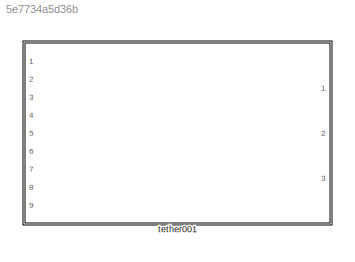
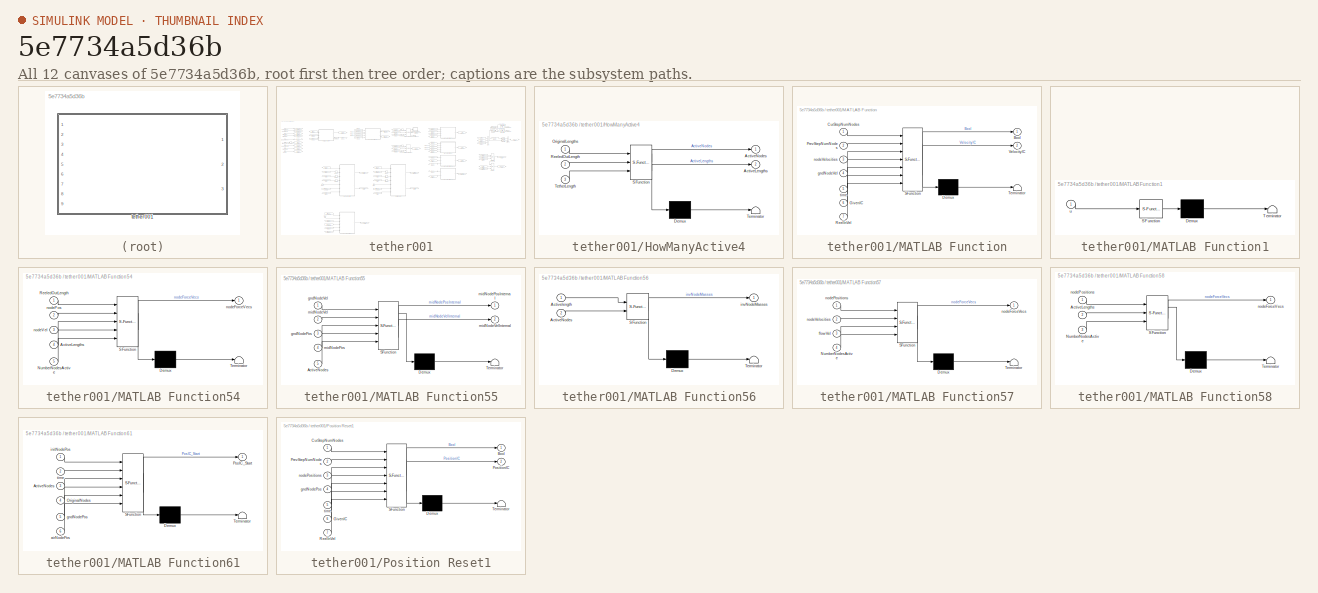
[diagram: thumbnail index - all 12 canvases of the model, root first then tree order]
MODEL slx_5e7734a5d36b
KIND library
CONFIG AbsTol = auto
CONFIG EnableMultiTasking = off
CONFIG FixedStep = auto
CONFIG MaxStep = auto
CONFIG MinStep = auto
CONFIG RelTol = 1e-3
CONFIG SampleTimeConstraint = Unconstrained
CONFIG SolverName = VariableStepAuto
CONFIG StartTime = 0.0
CONFIG StopTime = 10.0
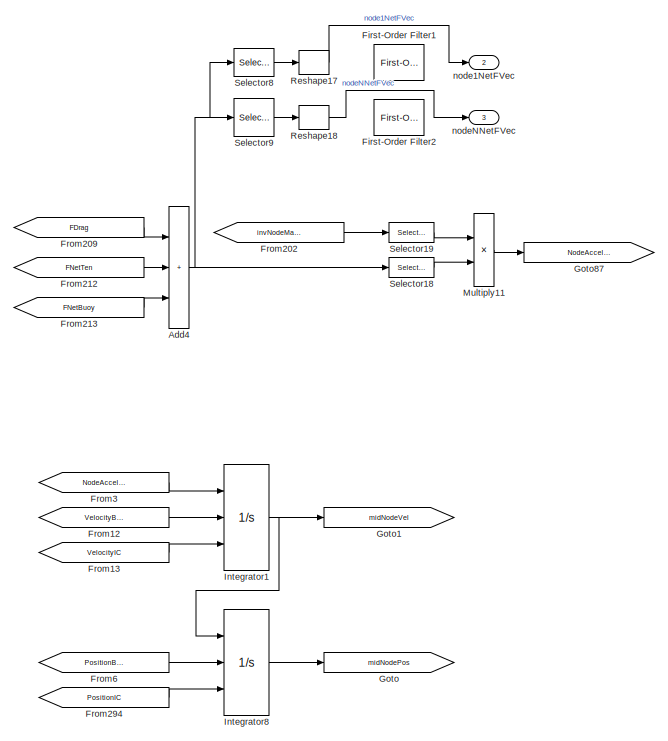
[diagram: tether001 - part 1/6, top right region]
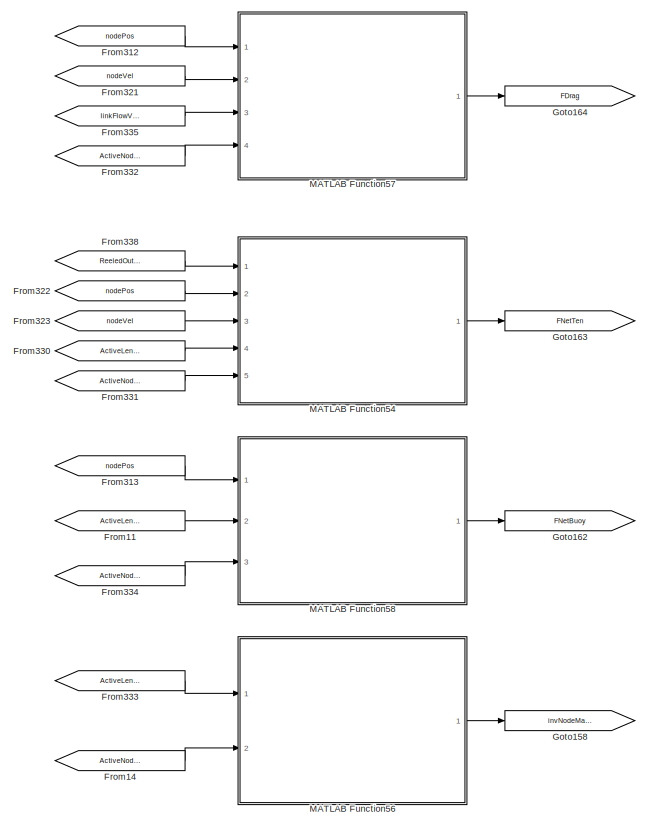
[diagram: tether001 - part 2/6, top right region]
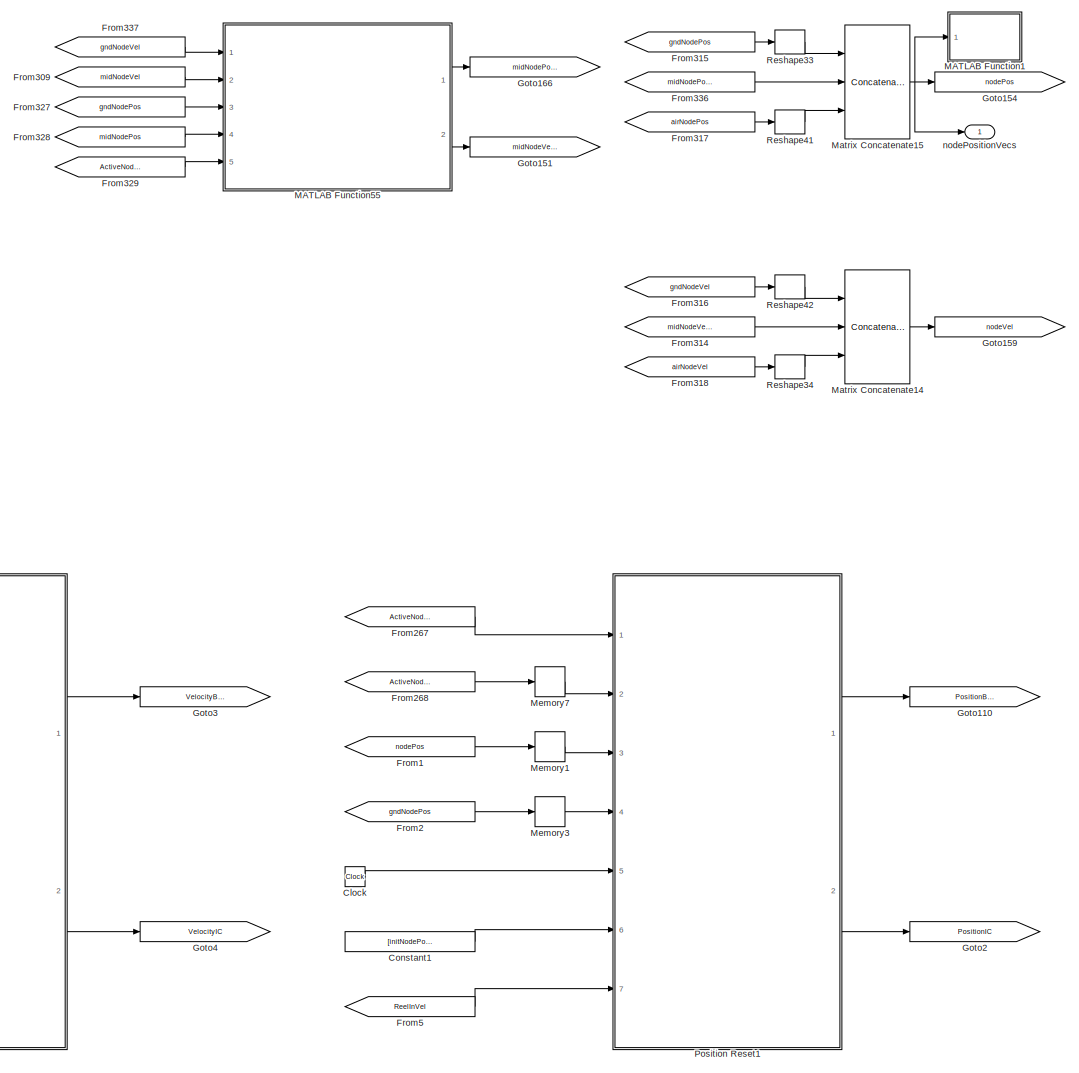
[diagram: tether001 - part 3/6, central region]
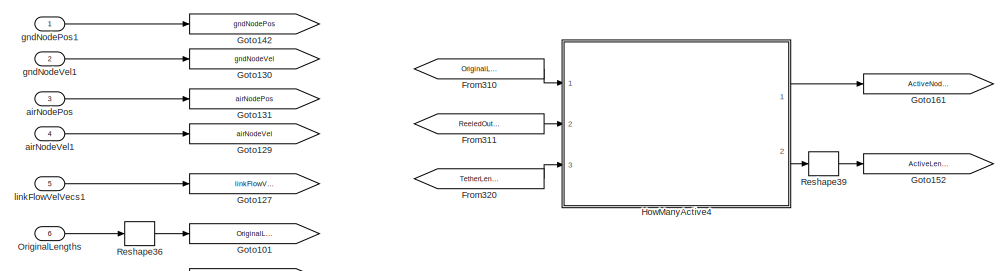
[diagram: tether001 - part 4/6, top left region]
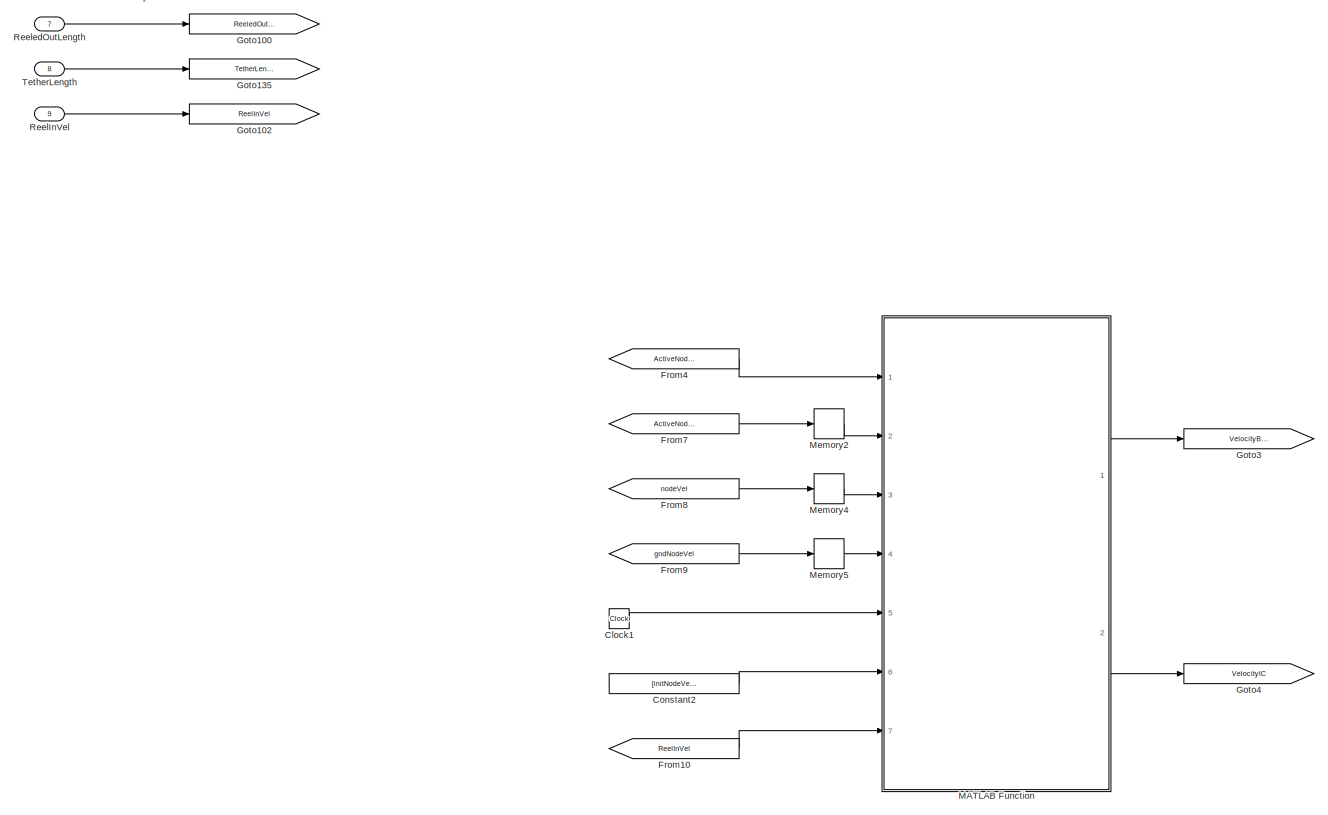
[diagram: tether001 - part 5/6, middle left region]
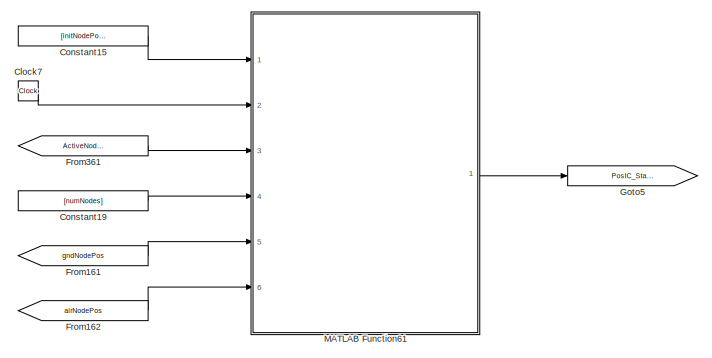
[diagram: tether001 - part 6/6, bottom left region]
BLOCK [SubSystem] tether001
  Ports = [9, 3]
  RequestExecContextInheritance = off
BLOCK [Sum] tether001/Add4
  IconShape = rectangular
  Inputs = 3
  Ports = [3, 1]
BLOCK [Clock] tether001/Clock
BLOCK [Clock] tether001/Clock1
BLOCK [Clock] tether001/Clock7
  Commented = on
BLOCK [Constant] tether001/Constant1
  Value = [initNodePos]
BLOCK [Constant] tether001/Constant15
  Commented = on
  Value = [initNodePos]
BLOCK [Constant] tether001/Constant19
  Commented = on
  Value = [numNodes]
BLOCK [Constant] tether001/Constant2
  Value = [initNodeVel]
BLOCK [Reference] tether001/First-Order Filter1  REF=spsFirstOrderFilterLib/First-Order
Filter
  Commented = on
  Ports = [1, 1]
  SourceBlock = spsFirstOrderFilterLib/First-Order\nFilter
  SourceProductBaseCode = PS
  SourceType = First-Order Filter
BLOCK [Reference] tether001/First-Order Filter2  REF=spsFirstOrderFilterLib/First-Order
Filter
  Commented = on
  Ports = [1, 1]
  SourceBlock = spsFirstOrderFilterLib/First-Order\nFilter
  SourceProductBaseCode = PS
  SourceType = First-Order Filter
BLOCK [From] tether001/From1
  GotoTag = nodePos
BLOCK [From] tether001/From10
  GotoTag = ReelInVel
BLOCK [From] tether001/From11
  GotoTag = ActiveLengths
BLOCK [From] tether001/From12
  GotoTag = VelocityBoolean
BLOCK [From] tether001/From13
  GotoTag = VelocityIC
BLOCK [From] tether001/From14
  GotoTag = ActiveNodes
BLOCK [From] tether001/From161
  Commented = on
  GotoTag = gndNodePos
BLOCK [From] tether001/From162
  Commented = on
  GotoTag = airNodePos
  NameLocation = top
BLOCK [From] tether001/From2
  GotoTag = gndNodePos
BLOCK [From] tether001/From202
  GotoTag = invNodeMasses
BLOCK [From] tether001/From209
  GotoTag = FDrag
BLOCK [From] tether001/From212
  GotoTag = FNetTen
BLOCK [From] tether001/From213
  GotoTag = FNetBuoy
BLOCK [From] tether001/From267
  GotoTag = ActiveNodes
BLOCK [From] tether001/From268
  GotoTag = ActiveNodes
BLOCK [From] tether001/From294
  GotoTag = PositionIC
BLOCK [From] tether001/From3
  GotoTag = NodeAccelerations
BLOCK [From] tether001/From309
  GotoTag = midNodeVel
BLOCK [From] tether001/From310
  GotoTag = OriginalLengths
BLOCK [From] tether001/From311
  GotoTag = ReeledOutLength
BLOCK [From] tether001/From312
  GotoTag = nodePos
BLOCK [From] tether001/From313
  GotoTag = nodePos
BLOCK [From] tether001/From314
  GotoTag = midNodeVelInternal
BLOCK [From] tether001/From315
  GotoTag = gndNodePos
BLOCK [From] tether001/From316
  GotoTag = gndNodeVel
BLOCK [From] tether001/From317
  GotoTag = airNodePos
BLOCK [From] tether001/From318
  GotoTag = airNodeVel
BLOCK [From] tether001/From320
  GotoTag = TetherLength
BLOCK [From] tether001/From321
  GotoTag = nodeVel
BLOCK [From] tether001/From322
  GotoTag = nodePos
BLOCK [From] tether001/From323
  GotoTag = nodeVel
BLOCK [From] tether001/From327
  GotoTag = gndNodePos
BLOCK [From] tether001/From328
  GotoTag = midNodePos
BLOCK [From] tether001/From329
  GotoTag = ActiveNodes
BLOCK [From] tether001/From330
  GotoTag = ActiveLengths
BLOCK [From] tether001/From331
  GotoTag = ActiveNodes
BLOCK [From] tether001/From332
  GotoTag = ActiveNodes
BLOCK [From] tether001/From333
  GotoTag = ActiveLengths
BLOCK [From] tether001/From334
  GotoTag = ActiveNodes
BLOCK [From] tether001/From335
  GotoTag = linkFlowVelVecs
BLOCK [From] tether001/From336
  GotoTag = midNodePosInternal
BLOCK [From] tether001/From337
  GotoTag = gndNodeVel
BLOCK [From] tether001/From338
  GotoTag = ReeledOutLength
BLOCK [From] tether001/From361
  Commented = on
  GotoTag = ActiveNodes
BLOCK [From] tether001/From4
  GotoTag = ActiveNodes
BLOCK [From] tether001/From5
  GotoTag = ReelInVel
BLOCK [From] tether001/From6
  GotoTag = PositionBoolean
BLOCK [From] tether001/From7
  GotoTag = ActiveNodes
BLOCK [From] tether001/From8
  GotoTag = nodeVel
BLOCK [From] tether001/From9
  GotoTag = gndNodeVel
BLOCK [Goto] tether001/Goto
  GotoTag = midNodePos
BLOCK [Goto] tether001/Goto1
  GotoTag = midNodeVel
BLOCK [Goto] tether001/Goto100
  GotoTag = ReeledOutLength
BLOCK [Goto] tether001/Goto101
  GotoTag = OriginalLengths
BLOCK [Goto] tether001/Goto102
  GotoTag = ReelInVel
BLOCK [Goto] tether001/Goto110
  GotoTag = PositionBoolean
BLOCK [Goto] tether001/Goto127
  GotoTag = linkFlowVelVecs
BLOCK [Goto] tether001/Goto129
  GotoTag = airNodeVel
BLOCK [Goto] tether001/Goto130
  GotoTag = gndNodeVel
BLOCK [Goto] tether001/Goto131
  GotoTag = airNodePos
BLOCK [Goto] tether001/Goto135
  GotoTag = TetherLength
BLOCK [Goto] tether001/Goto142
  GotoTag = gndNodePos
BLOCK [Goto] tether001/Goto151
  GotoTag = midNodeVelInternal
BLOCK [Goto] tether001/Goto152
  GotoTag = ActiveLengths
BLOCK [Goto] tether001/Goto154
  GotoTag = nodePos
BLOCK [Goto] tether001/Goto158
  GotoTag = invNodeMasses
BLOCK [Goto] tether001/Goto159
  GotoTag = nodeVel
BLOCK [Goto] tether001/Goto161
  GotoTag = ActiveNodes
BLOCK [Goto] tether001/Goto162
  GotoTag = FNetBuoy
BLOCK [Goto] tether001/Goto163
  GotoTag = FNetTen
BLOCK [Goto] tether001/Goto164
  GotoTag = FDrag
BLOCK [Goto] tether001/Goto166
  GotoTag = midNodePosInternal
BLOCK [Goto] tether001/Goto2
  GotoTag = PositionIC
BLOCK [Goto] tether001/Goto3
  GotoTag = VelocityBoolean
BLOCK [Goto] tether001/Goto4
  GotoTag = VelocityIC
BLOCK [Goto] tether001/Goto5
  Commented = on
  GotoTag = PosIC_Start
BLOCK [Goto] tether001/Goto87
  GotoTag = NodeAccelerations
BLOCK [SubSystem] tether001/HowManyActive4
  ErrorFcn = Stateflow.Translate.translate
  PermitHierarchicalResolution = ExplicitOnly
  Ports = [3, 2]
  RequestExecContextInheritance = off
  SFBlockType = MATLAB Function
  TreatAsAtomicUnit = on
BLOCK [Demux] tether001/HowManyActive4/ Demux 
  Outputs = 1
  Ports = [1, 1]
BLOCK [S-Function] tether001/HowManyActive4/ SFunction 
  EnableBusSupport = off
  FunctionName = sf_sfun
  PortCounts = [3 3]
  Ports = [3, 3]
  SFcnIsStateOwnerBlock = off
  SFunctionDeploymentMode = off
  Tag = Stateflow S-Function 1
BLOCK [Terminator] tether001/HowManyActive4/ Terminator 
BLOCK [Outport] tether001/HowManyActive4/ActiveLengths
  Port = 2
BLOCK [Outport] tether001/HowManyActive4/ActiveNodes
BLOCK [Inport] tether001/HowManyActive4/OriginalLengths
BLOCK [Inport] tether001/HowManyActive4/ReeledOutLength
  Port = 2
BLOCK [Inport] tether001/HowManyActive4/TetherLength
  Port = 3
BLOCK [Integrator] tether001/Integrator1
  ExternalReset = rising
  InitialConditionSource = external
  Ports = [3, 1]
BLOCK [Integrator] tether001/Integrator8
  ExternalReset = rising
  InitialConditionSource = external
  Ports = [3, 1]
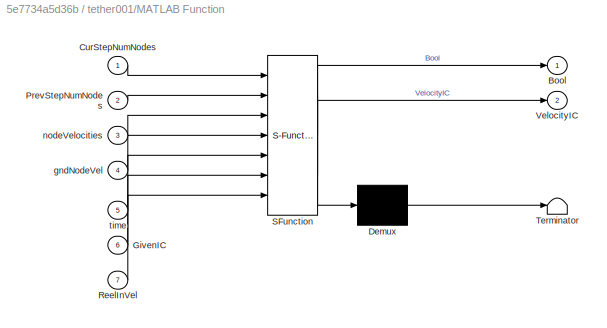
BLOCK [SubSystem] tether001/MATLAB Function
  ErrorFcn = Stateflow.Translate.translate
  PermitHierarchicalResolution = ExplicitOnly
  Ports = [7, 2]
  RequestExecContextInheritance = off
  SFBlockType = MATLAB Function
  TreatAsAtomicUnit = on
BLOCK [Demux] tether001/MATLAB Function/ Demux 
  Outputs = 1
  Ports = [1, 1]
BLOCK [S-Function] tether001/MATLAB Function/ SFunction 
  EnableBusSupport = off
  FunctionName = sf_sfun
  PortCounts = [7 3]
  Ports = [7, 3]
  SFcnIsStateOwnerBlock = off
  SFunctionDeploymentMode = off
  Tag = Stateflow S-Function 2
BLOCK [Terminator] tether001/MATLAB Function/ Terminator 
BLOCK [Outport] tether001/MATLAB Function/Bool
BLOCK [Inport] tether001/MATLAB Function/CurStepNumNodes
BLOCK [Inport] tether001/MATLAB Function/GivenIC
  Port = 6
BLOCK [Inport] tether001/MATLAB Function/PrevStepNumNodes
  Port = 2
BLOCK [Inport] tether001/MATLAB Function/ReelInVel
  Port = 7
BLOCK [Outport] tether001/MATLAB Function/VelocityIC
  Port = 2
BLOCK [Inport] tether001/MATLAB Function/gndNodeVel
  Port = 4
BLOCK [Inport] tether001/MATLAB Function/nodeVelocities
  Port = 3
BLOCK [Inport] tether001/MATLAB Function/time
  Port = 5
BLOCK [SubSystem] tether001/MATLAB Function1
  ErrorFcn = Stateflow.Translate.translate
  PermitHierarchicalResolution = ExplicitOnly
  Ports = [1]
  RequestExecContextInheritance = off
  SFBlockType = MATLAB Function
  TreatAsAtomicUnit = on
BLOCK [Demux] tether001/MATLAB Function1/ Demux 
  Outputs = 1
  Ports = [1, 1]
BLOCK [S-Function] tether001/MATLAB Function1/ SFunction 
  EnableBusSupport = off
  FunctionName = sf_sfun
  PortCounts = [1 1]
  Ports = [1, 1]
  SFcnIsStateOwnerBlock = off
  SFunctionDeploymentMode = off
  Tag = Stateflow S-Function 3
BLOCK [Terminator] tether001/MATLAB Function1/ Terminator 
BLOCK [Inport] tether001/MATLAB Function1/u
BLOCK [SubSystem] tether001/MATLAB Function54
  ErrorFcn = Stateflow.Translate.translate
  PermitHierarchicalResolution = ExplicitOnly
  Ports = [5, 1]
  RequestExecContextInheritance = off
  SFBlockType = MATLAB Function
  TreatAsAtomicUnit = on
BLOCK [Demux] tether001/MATLAB Function54/ Demux 
  Outputs = 1
  Ports = [1, 1]
BLOCK [S-Function] tether001/MATLAB Function54/ SFunction 
  EnableBusSupport = off
  FunctionName = sf_sfun
  PortCounts = [5 2]
  Ports = [5, 2]
  SFcnIsStateOwnerBlock = off
  SFunctionDeploymentMode = off
  Tag = Stateflow S-Function 4
BLOCK [Terminator] tether001/MATLAB Function54/ Terminator 
BLOCK [Inport] tether001/MATLAB Function54/ActiveLengths
  Port = 4
BLOCK [Inport] tether001/MATLAB Function54/NumberNodesActive
  Port = 5
BLOCK [Inport] tether001/MATLAB Function54/ReeledOutLength
BLOCK [Outport] tether001/MATLAB Function54/nodeForceVecs
BLOCK [Inport] tether001/MATLAB Function54/nodePos
  Port = 2
BLOCK [Inport] tether001/MATLAB Function54/nodeVel
  Port = 3
BLOCK [SubSystem] tether001/MATLAB Function55
  ErrorFcn = Stateflow.Translate.translate
  PermitHierarchicalResolution = ExplicitOnly
  Ports = [5, 2]
  RequestExecContextInheritance = off
  SFBlockType = MATLAB Function
  TreatAsAtomicUnit = on
BLOCK [Demux] tether001/MATLAB Function55/ Demux 
  Outputs = 1
  Ports = [1, 1]
BLOCK [S-Function] tether001/MATLAB Function55/ SFunction 
  EnableBusSupport = off
  FunctionName = sf_sfun
  PortCounts = [5 3]
  Ports = [5, 3]
  SFcnIsStateOwnerBlock = off
  SFunctionDeploymentMode = off
  Tag = Stateflow S-Function 5
BLOCK [Terminator] tether001/MATLAB Function55/ Terminator 
BLOCK [Inport] tether001/MATLAB Function55/ActiveNodes
  Port = 5
BLOCK [Inport] tether001/MATLAB Function55/gndNodePos
  Port = 3
BLOCK [Inport] tether001/MATLAB Function55/gndNodeVel
BLOCK [Inport] tether001/MATLAB Function55/midNodePos
  Port = 4
BLOCK [Outport] tether001/MATLAB Function55/midNodePosInternal
BLOCK [Inport] tether001/MATLAB Function55/midNodeVel
  Port = 2
BLOCK [Outport] tether001/MATLAB Function55/midNodeVelInternal
  Port = 2
BLOCK [SubSystem] tether001/MATLAB Function56
  ErrorFcn = Stateflow.Translate.translate
  PermitHierarchicalResolution = ExplicitOnly
  Ports = [2, 1]
  RequestExecContextInheritance = off
  SFBlockType = MATLAB Function
  TreatAsAtomicUnit = on
BLOCK [Demux] tether001/MATLAB Function56/ Demux 
  Outputs = 1
  Ports = [1, 1]
BLOCK [S-Function] tether001/MATLAB Function56/ SFunction 
  EnableBusSupport = off
  FunctionName = sf_sfun
  PortCounts = [2 2]
  Ports = [2, 2]
  SFcnIsStateOwnerBlock = off
  SFunctionDeploymentMode = off
  Tag = Stateflow S-Function 6
BLOCK [Terminator] tether001/MATLAB Function56/ Terminator 
BLOCK [Inport] tether001/MATLAB Function56/ActiveNodes
  Port = 2
BLOCK [Inport] tether001/MATLAB Function56/Activelength
BLOCK [Outport] tether001/MATLAB Function56/invNodeMasses
BLOCK [SubSystem] tether001/MATLAB Function57
  ErrorFcn = Stateflow.Translate.translate
  PermitHierarchicalResolution = ExplicitOnly
  Ports = [4, 1]
  RequestExecContextInheritance = off
  SFBlockType = MATLAB Function
  TreatAsAtomicUnit = on
BLOCK [Demux] tether001/MATLAB Function57/ Demux 
  Outputs = 1
  Ports = [1, 1]
BLOCK [S-Function] tether001/MATLAB Function57/ SFunction 
  EnableBusSupport = off
  FunctionName = sf_sfun
  PortCounts = [4 2]
  Ports = [4, 2]
  SFcnIsStateOwnerBlock = off
  SFunctionDeploymentMode = off
  Tag = Stateflow S-Function 7
BLOCK [Terminator] tether001/MATLAB Function57/ Terminator 
BLOCK [Inport] tether001/MATLAB Function57/NumberNodesActive
  Port = 4
BLOCK [Inport] tether001/MATLAB Function57/flowVel
  Port = 3
BLOCK [Outport] tether001/MATLAB Function57/nodeForceVecs
BLOCK [Inport] tether001/MATLAB Function57/nodePositions
BLOCK [Inport] tether001/MATLAB Function57/nodeVelocities
  Port = 2
BLOCK [SubSystem] tether001/MATLAB Function58
  ErrorFcn = Stateflow.Translate.translate
  PermitHierarchicalResolution = ExplicitOnly
  Ports = [3, 1]
  RequestExecContextInheritance = off
  SFBlockType = MATLAB Function
  TreatAsAtomicUnit = on
BLOCK [Demux] tether001/MATLAB Function58/ Demux 
  Outputs = 1
  Ports = [1, 1]
BLOCK [S-Function] tether001/MATLAB Function58/ SFunction 
  EnableBusSupport = off
  FunctionName = sf_sfun
  PortCounts = [3 2]
  Ports = [3, 2]
  SFcnIsStateOwnerBlock = off
  SFunctionDeploymentMode = off
  Tag = Stateflow S-Function 8
BLOCK [Terminator] tether001/MATLAB Function58/ Terminator 
BLOCK [Inport] tether001/MATLAB Function58/ActiveLengths
  Port = 2
BLOCK [Inport] tether001/MATLAB Function58/NumberNodesActive
  Port = 3
BLOCK [Outport] tether001/MATLAB Function58/nodeForceVecs
BLOCK [Inport] tether001/MATLAB Function58/nodePositions
BLOCK [SubSystem] tether001/MATLAB Function61
  Commented = on
  ErrorFcn = Stateflow.Translate.translate
  PermitHierarchicalResolution = ExplicitOnly
  Ports = [6, 1]
  RequestExecContextInheritance = off
  SFBlockType = MATLAB Function
  TreatAsAtomicUnit = on
BLOCK [Demux] tether001/MATLAB Function61/ Demux 
  Outputs = 1
  Ports = [1, 1]
BLOCK [S-Function] tether001/MATLAB Function61/ SFunction 
  EnableBusSupport = off
  FunctionName = sf_sfun
  PortCounts = [6 2]
  Ports = [6, 2]
  SFcnIsStateOwnerBlock = off
  SFunctionDeploymentMode = off
  Tag = Stateflow S-Function 9
BLOCK [Terminator] tether001/MATLAB Function61/ Terminator 
BLOCK [Inport] tether001/MATLAB Function61/ActiveNodes
  Port = 3
BLOCK [Inport] tether001/MATLAB Function61/OriginalNodes
  Port = 4
BLOCK [Outport] tether001/MATLAB Function61/PosIC_Start
BLOCK [Inport] tether001/MATLAB Function61/airNodePos
  Port = 6
BLOCK [Inport] tether001/MATLAB Function61/gndNodePos
  Port = 5
BLOCK [Inport] tether001/MATLAB Function61/initNodePos
BLOCK [Inport] tether001/MATLAB Function61/time
  Port = 2
BLOCK [Concatenate] tether001/Matrix Concatenate14
  ConcatenateDimension = 2
  Mode = Multidimensional array
  NumInputs = 3
  Ports = [3, 1]
BLOCK [Concatenate] tether001/Matrix Concatenate15
  ConcatenateDimension = 2
  Mode = Multidimensional array
  NumInputs = 3
  Ports = [3, 1]
BLOCK [Memory] tether001/Memory1
BLOCK [Memory] tether001/Memory2
BLOCK [Memory] tether001/Memory3
BLOCK [Memory] tether001/Memory4
BLOCK [Memory] tether001/Memory5
BLOCK [Memory] tether001/Memory7
BLOCK [Product] tether001/Multiply11
  NameLocation = left
  Ports = [2, 1]
BLOCK [Inport] tether001/OriginalLengths
  Port = 6
BLOCK [SubSystem] tether001/Position Reset1
  ErrorFcn = Stateflow.Translate.translate
  PermitHierarchicalResolution = ExplicitOnly
  Ports = [7, 2]
  RequestExecContextInheritance = off
  SFBlockType = MATLAB Function
  TreatAsAtomicUnit = on
BLOCK [Demux] tether001/Position Reset1/ Demux 
  Outputs = 1
  Ports = [1, 1]
BLOCK [S-Function] tether001/Position Reset1/ SFunction 
  EnableBusSupport = off
  FunctionName = sf_sfun
  PortCounts = [7 3]
  Ports = [7, 3]
  SFcnIsStateOwnerBlock = off
  SFunctionDeploymentMode = off
  Tag = Stateflow S-Function 10
BLOCK [Terminator] tether001/Position Reset1/ Terminator 
BLOCK [Outport] tether001/Position Reset1/Bool
BLOCK [Inport] tether001/Position Reset1/CurStepNumNodes
BLOCK [Inport] tether001/Position Reset1/GivenIC
  Port = 6
BLOCK [Outport] tether001/Position Reset1/PositionIC
  Port = 2
BLOCK [Inport] tether001/Position Reset1/PrevStepNumNodes
  Port = 2
BLOCK [Inport] tether001/Position Reset1/ReelInVel
  Port = 7
BLOCK [Inport] tether001/Position Reset1/gndNodePos
  Port = 4
BLOCK [Inport] tether001/Position Reset1/nodePositions
  Port = 3
BLOCK [Inport] tether001/Position Reset1/time
  Port = 5
BLOCK [Inport] tether001/ReelInVel
  Port = 9
BLOCK [Inport] tether001/ReeledOutLength
  Port = 7
BLOCK [Reshape] tether001/Reshape17
  OutputDimensionality = Column vector (2-D)
  Ports = [1, 1]
BLOCK [Reshape] tether001/Reshape18
  OutputDimensionality = Column vector (2-D)
  Ports = [1, 1]
BLOCK [Reshape] tether001/Reshape33
  OutputDimensionality = Column vector (2-D)
  Ports = [1, 1]
BLOCK [Reshape] tether001/Reshape34
  OutputDimensionality = Column vector (2-D)
  Ports = [1, 1]
BLOCK [Reshape] tether001/Reshape36
  OutputDimensionality = Row vector (2-D)
  Ports = [1, 1]
BLOCK [Reshape] tether001/Reshape39
  OutputDimensionality = Row vector (2-D)
  Ports = [1, 1]
BLOCK [Reshape] tether001/Reshape41
  OutputDimensionality = Column vector (2-D)
  Ports = [1, 1]
BLOCK [Reshape] tether001/Reshape42
  OutputDimensionality = Column vector (2-D)
  Ports = [1, 1]
BLOCK [Selector] tether001/Selector18
  IndexOptions = Select all,Index vector (dialog)
  Indices = [1 3],2:numNodes-1
  InputPortWidth = 3
  NumberOfDimensions = 2
  OutputSizes = 1,1
  Ports = [1, 1]
BLOCK [Selector] tether001/Selector19
  IndexOptions = Select all,Index vector (dialog)
  Indices = [1 3],2:numNodes-1
  InputPortWidth = 3
  NumberOfDimensions = 2
  OutputSizes = 1,1
  Ports = [1, 1]
BLOCK [Selector] tether001/Selector8
  IndexOptions = Select all,Index vector (dialog)
  Indices = [1 3],1
  InputPortWidth = 3
  NumberOfDimensions = 2
  OutputSizes = 1,1
  Ports = [1, 1]
BLOCK [Selector] tether001/Selector9
  IndexOptions = Select all,Starting index (dialog)
  Indices = [1 3],numNodes
  InputPortWidth = 3
  NumberOfDimensions = 2
  OutputSizes = 1,1
  Ports = [1, 1]
BLOCK [Inport] tether001/TetherLength
  Port = 8
BLOCK [Inport] tether001/airNodePos
  Port = 3
BLOCK [Inport] tether001/airNodeVel1
  Port = 4
BLOCK [Inport] tether001/gndNodePos1
BLOCK [Inport] tether001/gndNodeVel1
  Port = 2
BLOCK [Inport] tether001/linkFlowVelVecs1
  Port = 5
BLOCK [Outport] tether001/node1NetFVec
  NameLocation = left
  Port = 2
  VectorParamsAs1DForOutWhenUnconnected = off
BLOCK [Outport] tether001/nodeNNetFVec
  NameLocation = top
  Port = 3
  VectorParamsAs1DForOutWhenUnconnected = off
BLOCK [Outport] tether001/nodePositionVecs
  VectorParamsAs1DForOutWhenUnconnected = off
NET tether001/Add4:1 -> tether001/Selector18:1, tether001/Selector8:1, tether001/Selector9:1
LINE tether001/Clock1:1 -> tether001/MATLAB Function:5
LINE tether001/Clock7:1 -> tether001/MATLAB Function61:2
LINE tether001/Clock:1 -> tether001/Position Reset1:5
LINE tether001/Constant15:1 -> tether001/MATLAB Function61:1
LINE tether001/Constant19:1 -> tether001/MATLAB Function61:4
LINE tether001/Constant1:1 -> tether001/Position Reset1:6
LINE tether001/Constant2:1 -> tether001/MATLAB Function:6
LINE tether001/From10:1 -> tether001/MATLAB Function:7
LINE tether001/From11:1 -> tether001/MATLAB Function58:2
LINE tether001/From12:1 -> tether001/Integrator1:2
LINE tether001/From13:1 -> tether001/Integrator1:3
LINE tether001/From14:1 -> tether001/MATLAB Function56:2
LINE tether001/From161:1 -> tether001/MATLAB Function61:5
LINE tether001/From162:1 -> tether001/MATLAB Function61:6
LINE tether001/From1:1 -> tether001/Memory1:1
LINE tether001/From202:1 -> tether001/Selector19:1
LINE tether001/From209:1 -> tether001/Add4:1
LINE tether001/From212:1 -> tether001/Add4:2
LINE tether001/From213:1 -> tether001/Add4:3
LINE tether001/From267:1 -> tether001/Position Reset1:1
LINE tether001/From268:1 -> tether001/Memory7:1
LINE tether001/From294:1 -> tether001/Integrator8:3
LINE tether001/From2:1 -> tether001/Memory3:1
LINE tether001/From309:1 -> tether001/MATLAB Function55:2
LINE tether001/From310:1 -> tether001/HowManyActive4:1
LINE tether001/From311:1 -> tether001/HowManyActive4:2
LINE tether001/From312:1 -> tether001/MATLAB Function57:1
LINE tether001/From313:1 -> tether001/MATLAB Function58:1
LINE tether001/From314:1 -> tether001/Matrix Concatenate14:2
LINE tether001/From315:1 -> tether001/Reshape33:1
LINE tether001/From316:1 -> tether001/Reshape42:1
LINE tether001/From317:1 -> tether001/Reshape41:1
LINE tether001/From318:1 -> tether001/Reshape34:1
LINE tether001/From320:1 -> tether001/HowManyActive4:3
LINE tether001/From321:1 -> tether001/MATLAB Function57:2
LINE tether001/From322:1 -> tether001/MATLAB Function54:2
LINE tether001/From323:1 -> tether001/MATLAB Function54:3
LINE tether001/From327:1 -> tether001/MATLAB Function55:3
LINE tether001/From328:1 -> tether001/MATLAB Function55:4
LINE tether001/From329:1 -> tether001/MATLAB Function55:5
LINE tether001/From330:1 -> tether001/MATLAB Function54:4
LINE tether001/From331:1 -> tether001/MATLAB Function54:5
LINE tether001/From332:1 -> tether001/MATLAB Function57:4
LINE tether001/From333:1 -> tether001/MATLAB Function56:1
LINE tether001/From334:1 -> tether001/MATLAB Function58:3
LINE tether001/From335:1 -> tether001/MATLAB Function57:3
LINE tether001/From336:1 -> tether001/Matrix Concatenate15:2
LINE tether001/From337:1 -> tether001/MATLAB Function55:1
LINE tether001/From338:1 -> tether001/MATLAB Function54:1
LINE tether001/From361:1 -> tether001/MATLAB Function61:3
LINE tether001/From3:1 -> tether001/Integrator1:1
LINE tether001/From4:1 -> tether001/MATLAB Function:1
LINE tether001/From5:1 -> tether001/Position Reset1:7
LINE tether001/From6:1 -> tether001/Integrator8:2
LINE tether001/From7:1 -> tether001/Memory2:1
LINE tether001/From8:1 -> tether001/Memory4:1
LINE tether001/From9:1 -> tether001/Memory5:1
LINE tether001/HowManyActive4:1 -> tether001/Goto161:1
LINE tether001/HowManyActive4:2 -> tether001/Reshape39:1
NET tether001/Integrator1:1 -> tether001/Goto1:1, tether001/Integrator8:1
LINE tether001/Integrator8:1 -> tether001/Goto:1
LINE tether001/MATLAB Function54:1 -> tether001/Goto163:1
LINE tether001/MATLAB Function55:1 -> tether001/Goto166:1
LINE tether001/MATLAB Function55:2 -> tether001/Goto151:1
LINE tether001/MATLAB Function56:1 -> tether001/Goto158:1
LINE tether001/MATLAB Function57:1 -> tether001/Goto164:1
LINE tether001/MATLAB Function58:1 -> tether001/Goto162:1
LINE tether001/MATLAB Function61:1 -> tether001/Goto5:1
LINE tether001/MATLAB Function:1 -> tether001/Goto3:1
LINE tether001/MATLAB Function:2 -> tether001/Goto4:1
LINE tether001/Matrix Concatenate14:1 -> tether001/Goto159:1
NET tether001/Matrix Concatenate15:1 -> tether001/Goto154:1, tether001/MATLAB Function1:1, tether001/nodePositionVecs:1
LINE tether001/Memory1:1 -> tether001/Position Reset1:3
LINE tether001/Memory2:1 -> tether001/MATLAB Function:2
LINE tether001/Memory3:1 -> tether001/Position Reset1:4
LINE tether001/Memory4:1 -> tether001/MATLAB Function:3
LINE tether001/Memory5:1 -> tether001/MATLAB Function:4
LINE tether001/Memory7:1 -> tether001/Position Reset1:2
LINE tether001/Multiply11:1 -> tether001/Goto87:1
LINE tether001/OriginalLengths:1 -> tether001/Reshape36:1
LINE tether001/Position Reset1:1 -> tether001/Goto110:1
LINE tether001/Position Reset1:2 -> tether001/Goto2:1
LINE tether001/ReelInVel:1 -> tether001/Goto102:1
LINE tether001/ReeledOutLength:1 -> tether001/Goto100:1
LINE tether001/Reshape17:1 -> tether001/node1NetFVec:1
LINE tether001/Reshape18:1 -> tether001/nodeNNetFVec:1
LINE tether001/Reshape33:1 -> tether001/Matrix Concatenate15:1
LINE tether001/Reshape34:1 -> tether001/Matrix Concatenate14:3
LINE tether001/Reshape36:1 -> tether001/Goto101:1
LINE tether001/Reshape39:1 -> tether001/Goto152:1
LINE tether001/Reshape41:1 -> tether001/Matrix Concatenate15:3
LINE tether001/Reshape42:1 -> tether001/Matrix Concatenate14:1
LINE tether001/Selector18:1 -> tether001/Multiply11:2
LINE tether001/Selector19:1 -> tether001/Multiply11:1
LINE tether001/Selector8:1 -> tether001/Reshape17:1
LINE tether001/Selector9:1 -> tether001/Reshape18:1
LINE tether001/TetherLength:1 -> tether001/Goto135:1
LINE tether001/airNodePos:1 -> tether001/Goto131:1
LINE tether001/airNodeVel1:1 -> tether001/Goto129:1
LINE tether001/gndNodePos1:1 -> tether001/Goto142:1
LINE tether001/gndNodeVel1:1 -> tether001/Goto130:1
LINE tether001/linkFlowVelVecs1:1 -> tether001/Goto127:1
note: NET lines group one-source signal fan-out (src -> all destinations, sorted); 1:1 wires keep LINE
CHART tether001/MATLAB Function58 states=1 transitions=1
  STATE_LABEL 'eML_blk_kernel()'
  STATE_LABEL 'SCRIPT:\nfunction nodeForceVecs = fcn(nodePositions,ActiveLengths, NumberNodesActive)\n\ntetherDensity = 952;\nfluidDensity = 1025;\ndiameter = .0144;\ngravity = 9.81;\n\n% In this notation, N is the number of nodes\nNa = NumberNodesActive;\nNo = size(nodePositions,2);\n\n% Actual Length of each link 1xN-1\nlinkLengths = sqrt(sum(diff(nodePositions,1,2).^2));\n\n% Number of links, scalar\nnumLinks = size(linkLeng...<+631ch>'
CHART tether001/MATLAB Function61 states=1 transitions=1
  STATE_LABEL 'eML_blk_kernel()'
  STATE_LABEL 'SCRIPT:\nfunction PosIC_Start = fcn(initNodePos,time, ActiveNodes, OriginalNodes,gndNodePos,airNodePos)\n\nif time==0\n    Na = ActiveNodes;\n    No = 11;%OriginalNodes;\n    \n    TetherVec = [linspace(gndNodePos(1),airNodePos(1),Na);...\n                 linspace(gndNodePos(2),airNodePos(2),Na);...\n                 linspace(gndNodePos(3),airNodePos(3),Na)];\n    PosIC_Start = [gndNodePos(1)*ones(1,No-2);...<+436ch>'
CHART tether001/Position Reset1 states=1 transitions=1
  STATE_LABEL 'eML_blk_kernel()'
  STATE_LABEL 'SCRIPT:\nfunction [Bool,PositionIC]  = fcn(CurStepNumNodes, PrevStepNumNodes, nodePositions, gndNodePos, time, GivenIC, ReelInVel)\n\nif ReelInVel<=0\n    if time==0\n        PositionIC = GivenIC;\n        Bool = 1;\n    else\n        Na = CurStepNumNodes;\n        No = size(nodePositions,2);\n\n        if PrevStepNumNodes==0\n            Nc = CurStepNumNodes;\n            Np = Nc;\n        else\n            Np ...<+3142ch>'
CHART tether001/HowManyActive4 states=1 transitions=1
  STATE_LABEL 'eML_blk_kernel()'
  STATE_LABEL 'SCRIPT:\nfunction [ActiveNodes, ActiveLengths] = fcn(OriginalLengths, ReeledOutLength, TetherLength)\n\nOriginalNodes = length(OriginalLengths)+1;\nNo = OriginalNodes;\n\nActiveLengths = zeros(size(OriginalLengths));\nL = zeros(size(ActiveLengths));\nflag = false;\na = 1;\n\nif ReeledOutLength == TetherLength\n    a = a+1;\n    L(1:end) = OriginalLengths(1:end);\nelse\n    while flag == false\n        if ReeledOu...<+313ch>'
CHART tether001/MATLAB Function states=1 transitions=1
  STATE_LABEL 'eML_blk_kernel()'
  STATE_LABEL 'SCRIPT:\nfunction [Bool,VelocityIC]  = fcn(CurStepNumNodes, PrevStepNumNodes, nodeVelocities, gndNodeVel, time, GivenIC, ReelInVel)\n\nif ReelInVel<=0\n    if time==0\n        VelocityIC = GivenIC;\n        Bool = 1;\n    else\n        Na = CurStepNumNodes;\n        No = size(nodeVelocities,2);\n\n        if PrevStepNumNodes==0\n            Nc = CurStepNumNodes;\n            Np = Nc;\n        else\n            N...<+1906ch>'
CHART tether001/MATLAB Function1 states=1 transitions=1
  STATE_LABEL 'eML_blk_kernel()'
  STATE_LABEL 'SCRIPT:\nfunction  fcn(u)\n\nu;'
CHART tether001/MATLAB Function54 states=1 transitions=1
  STATE_LABEL 'eML_blk_kernel()'
  STATE_LABEL 'SCRIPT:\nfunction nodeForceVecs  = fcn(ReeledOutLength, nodePos, nodeVel, ActiveLengths, NumberNodesActive)\n\nmass = .05;\nzeta = .75;\ndiameter = .0144;\nyoungsMod = 5*10^10;\n\nTotalNodes = size(nodePos,2);\nNo = TotalNodes;\nNa = NumberNodesActive;\n\nunstretchedLength = ReeledOutLength;\ntotalSpringConst = youngsMod*(pi/4)*(diameter^2)/unstretchedLength;\n\nSpringConsts = zeros(1,TotalNodes-1);\nif Na>2\n    ...<+1166ch>'
CHART tether001/MATLAB Function55 states=1 transitions=1
  STATE_LABEL 'eML_blk_kernel()'
  STATE_LABEL 'SCRIPT:\nfunction [midNodePosInternal,  midNodeVelInternal] = fcn(gndNodeVel,midNodeVel,gndNodePos, midNodePos, ActiveNodes)\n\nNo = size(midNodePos,2)+2;\nNa = ActiveNodes;\n\n% Reeled In Nodes are ground\nmidNodePosInternal = [gndNodePos(1)*ones(1,No-2);...\n                      gndNodePos(2)*ones(1,No-2);...\n                      gndNodePos(3)*ones(1,No-2)];\n                  \nmidNodeVelInternal = [gn...<+337ch>'
CHART tether001/MATLAB Function56 states=1 transitions=1
  STATE_LABEL 'eML_blk_kernel()'
  STATE_LABEL 'SCRIPT:\nfunction invNodeMasses  = fcn(Activelength,ActiveNodes)\n\ntetherDensity = 952;\ndiameter = .0144;\n\nNa = ActiveNodes;\nNo = length(Activelength)+1;\n\n% Mass of each link, 1xN-1\nlinkMasses  = tetherDensity*(Activelength*(pi/4)*diameter^2);\n\n% 1/mass for each node, 3xN (repmat so that we can multiply with force\n% vectors concatenated into matrix later\ninvNodeMasses = zeros(3,No);\ninvNodeMasses(:,...<+459ch>'
CHART tether001/MATLAB Function57 states=1 transitions=1
  STATE_LABEL 'eML_blk_kernel()'
  STATE_LABEL 'SCRIPT:\nfunction nodeForceVecs = fcn(nodePositions,nodeVelocities, flowVel, NumberNodesActive)\n\nflowDensity = 1025;\ndragCoeff = .5;\nthrDiam = .0144;\n\nTotalNodes = size(nodePositions,2);\nNo = TotalNodes;\nNa = NumberNodesActive;\n\n% Velocity and center of links 3xN-1\nlinkVelocities = (nodeVelocities(:,1:end-1) + nodeVelocities(:,2:end))/2;\n\n% Apparent flow at center of links 3xN-1\nlinkAppFlow = flowV...<+1573ch>'
CHART  states=0 transitions=0
CHART  states=0 transitions=0
CHART  states=0 transitions=0
CHART  states=0 transitions=0
CHART  states=0 transitions=0
CHART  states=0 transitions=0
CHART  states=0 transitions=0
CHART  states=0 transitions=0
CHART  states=0 transitions=0
CHART  states=0 transitions=0
